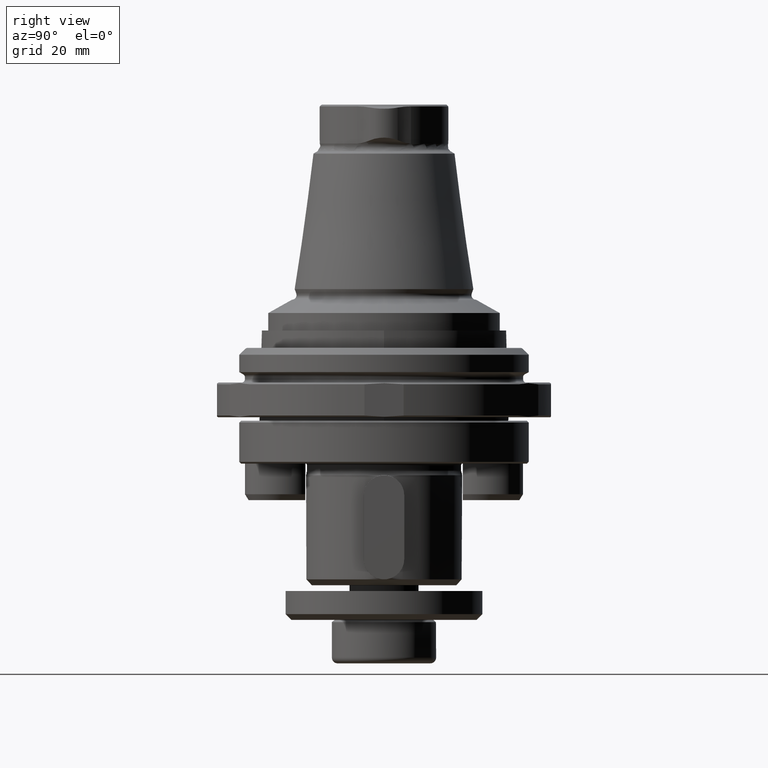
[diagram: clean part render]
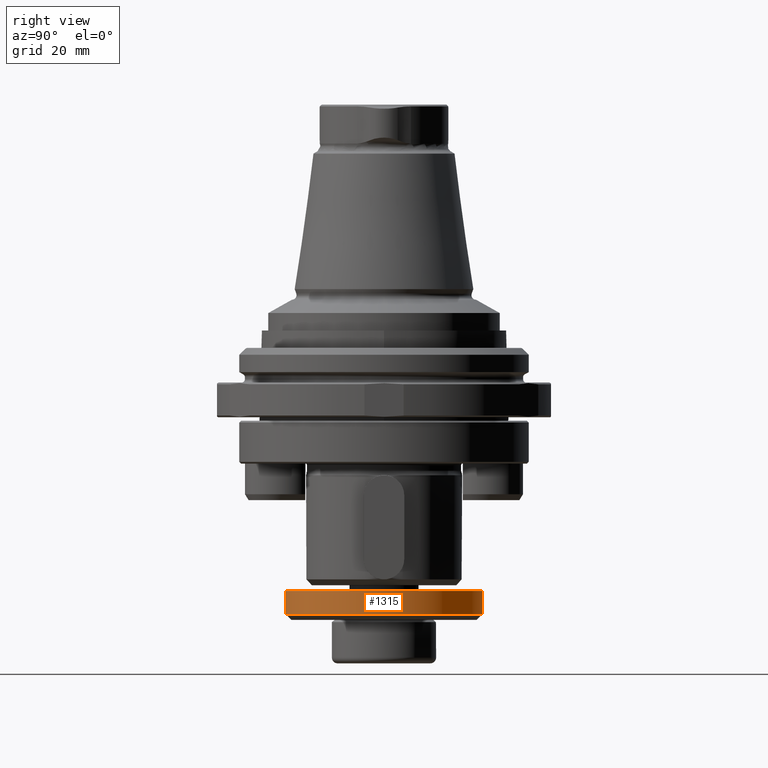
[diagram: same view with one face highlighted and labeled with its STEP entity id]
A machine part, right view. The second image highlights one B-rep face of the part: STEP entity #1315.
In plain terms, the highlighted cylindrical surface (bore or boss wall) has radius 17 mm, axis along (0, 0, -1).
Its self-contained STEP definition (entity closure, byte-faithful):
#121=CIRCLE('',#1491,17.);
#122=CIRCLE('',#1492,17.);
#161=CYLINDRICAL_SURFACE('',#1490,17.);
#575=ORIENTED_EDGE('',*,*,#754,.F.);
#576=ORIENTED_EDGE('',*,*,#755,.T.);
#754=EDGE_CURVE('',#878,#878,#121,.T.);
#755=EDGE_CURVE('',#879,#879,#122,.T.);
#878=VERTEX_POINT('',#2411);
#879=VERTEX_POINT('',#2413);
#1053=EDGE_LOOP('',(#575));
#1054=EDGE_LOOP('',(#576));
#1189=FACE_BOUND('',#1053,.T.);
#1190=FACE_BOUND('',#1054,.T.);
#1315=ADVANCED_FACE('',(#1189,#1190),#161,.T.);
#1490=AXIS2_PLACEMENT_3D('',#2409,#1859,#1860);
#1491=AXIS2_PLACEMENT_3D('',#2410,#1861,#1862);
#1492=AXIS2_PLACEMENT_3D('',#2412,#1863,#1864);
#1859=DIRECTION('',(1.22464605849178E-16,2.73472351077882E-63,-1.));
#1860=DIRECTION('',(-7.58612361656627E-32,-1.,1.66533453693773E-16));
#1861=DIRECTION('',(1.22464605849178E-16,2.73472351077882E-63,-1.));
#1862=DIRECTION('',(-7.58612361656627E-32,-1.,1.66533453693773E-16));
#1863=DIRECTION('',(1.22464605849178E-16,2.73472351077882E-63,-1.));
#1864=DIRECTION('',(-7.58612361656627E-32,-1.,1.66533453693773E-16));
#2409=CARTESIAN_POINT('',(1.28392451268516E-14,7.82697929398972E-31,-102.));
#2410=CARTESIAN_POINT('',(5.36890417005177E-15,7.82697929398972E-31,-41.));
#2411=CARTESIAN_POINT('',(5.36890417005177E-15,-17.,-41.));
#2412=CARTESIAN_POINT('',(4.87904574665506E-15,7.82697929398972E-31,-37.));
#2413=CARTESIAN_POINT('',(4.87904574665506E-15,-17.,-37.));